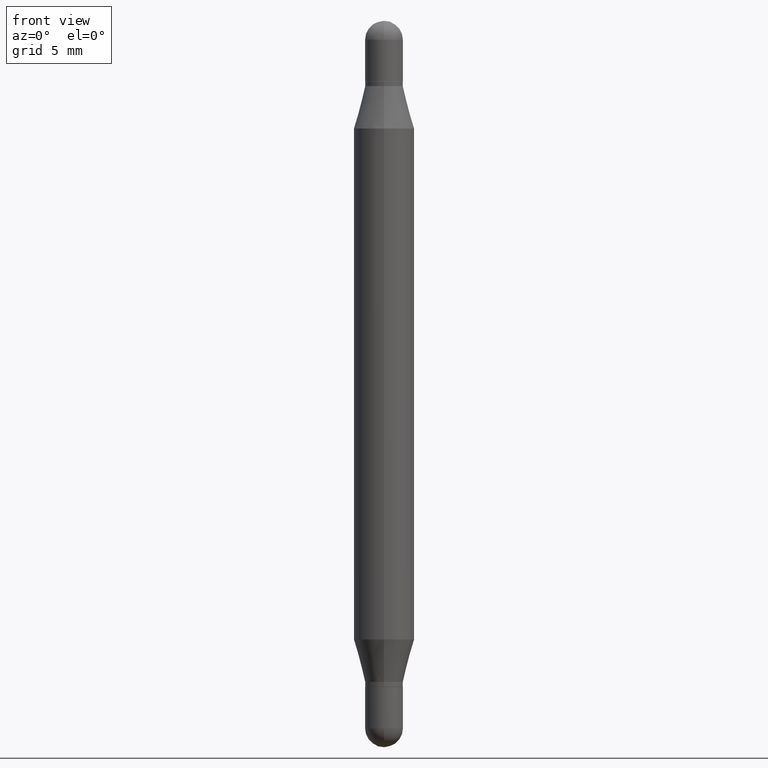
[diagram: clean part render]
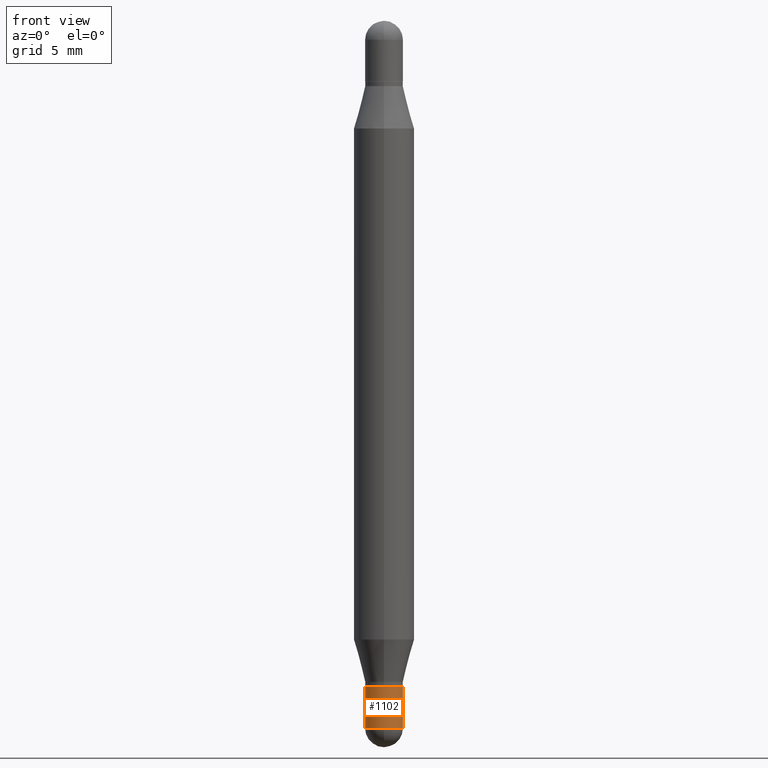
[diagram: same view with one face highlighted and labeled with its STEP entity id]
A machine part, front view. The second image highlights one B-rep face of the part: STEP entity #1102.
In plain terms, the highlighted cylindrical surface (edge-blend (fillet) strip) has radius 0.9919 mm, axis along (-0, 0, 1).
Its self-contained STEP definition (entity closure, byte-faithful):
#13 = CYLINDRICAL_SURFACE ( 'NONE', #618, 0.03905000000000000832 ) ;
#16 = DIRECTION ( 'NONE',  ( 1.000000000000000000, -6.982962677686265133E-15, 0.000000000000000000 ) ) ;
#71 = EDGE_CURVE ( 'NONE', #492, #445, #346, .T. ) ;
#92 = DIRECTION ( 'NONE',  ( -2.445468806185136877E-29, 3.491481338843145188E-15, 1.000000000000000000 ) ) ;
#101 = AXIS2_PLACEMENT_3D ( 'NONE', #621, #358, #16 ) ;
#116 = AXIS2_PLACEMENT_3D ( 'NONE', #1018, #178, #595 ) ;
#128 = ORIENTED_EDGE ( 'NONE', *, *, #266, .T. ) ;
#148 = DIRECTION ( 'NONE',  ( 1.000000000000000000, -6.982962677686266711E-15, 0.000000000000000000 ) ) ;
#167 = CARTESIAN_POINT ( 'NONE',  ( -0.03905000000000000832, -4.673366313131790734E-15, -1.460950000000000193 ) ) ;
#178 = DIRECTION ( 'NONE',  ( -2.445468806185136597E-29, 3.491481338843145583E-15, 1.000000000000000000 ) ) ;
#251 = CARTESIAN_POINT ( 'NONE',  ( -2.774669383142833871E-16, -0.03905000000000510146, -1.460950000000000193 ) ) ;
#266 = EDGE_CURVE ( 'NONE', #492, #923, #632, .T. ) ;
#274 = VERTEX_POINT ( 'NONE', #287 ) ;
#287 = CARTESIAN_POINT ( 'NONE',  ( 0.03905000000000000138, -5.073471533472974831E-15, -1.375000000000000222 ) ) ;
#318 = EDGE_CURVE ( 'NONE', #445, #274, #870, .T. ) ;
#325 = VERTEX_POINT ( 'NONE', #817 ) ;
#332 = DIRECTION ( 'NONE',  ( -2.445468806185136597E-29, 3.491481338843145583E-15, 1.000000000000000000 ) ) ;
#346 = LINE ( 'NONE', #771, #878 ) ;
#358 = DIRECTION ( 'NONE',  ( -2.445468806185136597E-29, 3.491481338843145583E-15, 1.000000000000000000 ) ) ;
#445 = VERTEX_POINT ( 'NONE', #502 ) ;
#455 = DIRECTION ( 'NONE',  ( -2.445468806185136877E-29, 3.491481338843145188E-15, 1.000000000000000000 ) ) ;
#481 = CARTESIAN_POINT ( 'NONE',  ( 3.362519608504562821E-29, -4.800786840909326507E-15, -1.375000000000000222 ) ) ;
#492 = VERTEX_POINT ( 'NONE', #167 ) ;
#502 = CARTESIAN_POINT ( 'NONE',  ( -0.03905000000000000138, -4.673366313131790734E-15, -1.375000000000000222 ) ) ;
#520 = DIRECTION ( 'NONE',  ( 1.000000000000000000, -6.982962677686266711E-15, 4.876176775795935232E-29 ) ) ;
#557 = EDGE_LOOP ( 'NONE', ( #921, #128, #834, #1048, #1007 ) ) ;
#574 = EDGE_CURVE ( 'NONE', #325, #274, #883, .T. ) ;
#595 = DIRECTION ( 'NONE',  ( 1.000000000000000000, -6.982962677686265133E-15, 0.000000000000000000 ) ) ;
#618 = AXIS2_PLACEMENT_3D ( 'NONE', #1077, #961, #520 ) ;
#621 = CARTESIAN_POINT ( 'NONE',  ( 3.572707652396175485E-29, -5.100879661982893620E-15, -1.460950000000000193 ) ) ;
#632 = CIRCLE ( 'NONE', #101, 0.03905000000000000832 ) ;
#699 = CARTESIAN_POINT ( 'NONE',  ( 0.03905000000000000832, -2.726846925636487675E-16, 1.904147030948313202E-30 ) ) ;
#771 = CARTESIAN_POINT ( 'NONE',  ( -0.03905000000000000832, 2.774669383143191817E-16, -1.920844152744540988E-30 ) ) ;
#801 = FACE_OUTER_BOUND ( 'NONE', #557, .T. ) ;
#817 = CARTESIAN_POINT ( 'NONE',  ( 0.03905000000000000832, -5.223517944009758388E-15, -1.460950000000000193 ) ) ;
#834 = ORIENTED_EDGE ( 'NONE', *, *, #983, .T. ) ;
#870 = CIRCLE ( 'NONE', #954, 0.03905000000000000138 ) ;
#878 = VECTOR ( 'NONE', #92, 39.37007874015748143 ) ;
#883 = LINE ( 'NONE', #699, #949 ) ;
#921 = ORIENTED_EDGE ( 'NONE', *, *, #71, .F. ) ;
#923 = VERTEX_POINT ( 'NONE', #251 ) ;
#949 = VECTOR ( 'NONE', #455, 39.37007874015748143 ) ;
#950 = CIRCLE ( 'NONE', #116, 0.03905000000000000832 ) ;
#954 = AXIS2_PLACEMENT_3D ( 'NONE', #481, #332, #148 ) ;
#961 = DIRECTION ( 'NONE',  ( -2.445468806185136597E-29, 3.491481338843145583E-15, 1.000000000000000000 ) ) ;
#983 = EDGE_CURVE ( 'NONE', #923, #325, #950, .T. ) ;
#1007 = ORIENTED_EDGE ( 'NONE', *, *, #318, .F. ) ;
#1018 = CARTESIAN_POINT ( 'NONE',  ( 3.572707652396175485E-29, -5.100879661982893620E-15, -1.460950000000000193 ) ) ;
#1048 = ORIENTED_EDGE ( 'NONE', *, *, #574, .T. ) ;
#1077 = CARTESIAN_POINT ( 'NONE',  ( 0.000000000000000000, 0.000000000000000000, 0.000000000000000000 ) ) ;
#1102 = ADVANCED_FACE ( 'NONE', ( #801 ), #13, .T. ) ;